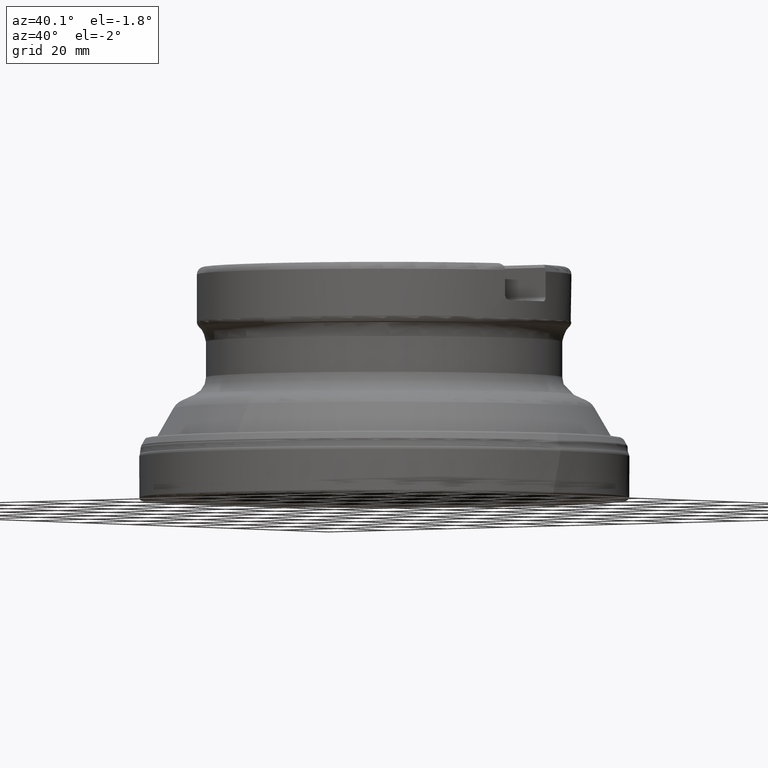
[diagram: clean part render]
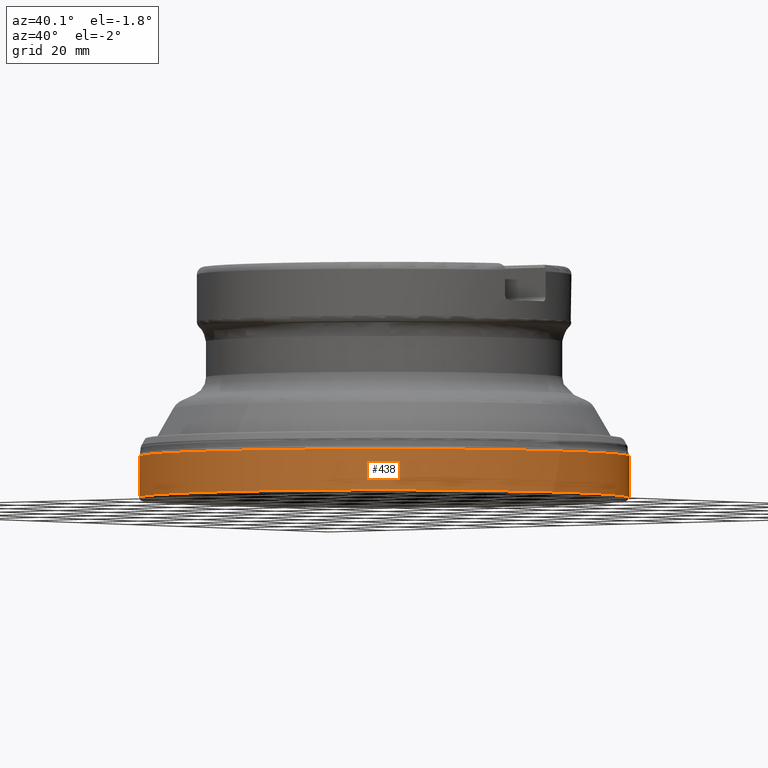
[diagram: same view with one face highlighted and labeled with its STEP entity id]
A machine part, auxiliary view. The second image highlights one B-rep face of the part: STEP entity #438.
In plain terms, the highlighted face is a SurfaceOfRevolution surface.
Its self-contained STEP definition (entity closure, byte-faithful):
#127=SURFACE_OF_REVOLUTION('',#1205,#148);
#148=AXIS1_PLACEMENT('',#2575,#1622);
#358=FACE_BOUND('',#609,.T.);
#359=FACE_BOUND('',#610,.T.);
#438=ADVANCED_FACE('',(#358,#359),#127,.F.);
#609=EDGE_LOOP('',(#851));
#610=EDGE_LOOP('',(#852));
#851=ORIENTED_EDGE('',*,*,#1073,.T.);
#852=ORIENTED_EDGE('',*,*,#1074,.F.);
#952=VERTEX_POINT('',#2546);
#953=VERTEX_POINT('',#2560);
#1073=EDGE_CURVE('',#952,#952,#1138,.T.);
#1074=EDGE_CURVE('',#953,#953,#1139,.T.);
#1138=CIRCLE('',#1328,63.500000056037);
#1139=CIRCLE('',#1329,63.5000004120349);
#1205=B_SPLINE_CURVE_WITH_KNOTS('',3,(#2561,#2562,#2563,#2564,#2565,#2566,
#2567,#2568,#2569,#2570,#2571,#2572,#2573,#2574),.UNSPECIFIED.,.F.,.F.,
(4,1,1,1,1,1,1,1,1,1,1,4),(0.,0.228057409693129,0.368730032744676,0.509402655796224,
0.650075278847772,0.720411590373546,0.755579746136432,0.790747901899319,
0.861084213425093,0.931420524950867,0.966588680713754,1.),.UNSPECIFIED.);
#1328=AXIS2_PLACEMENT_3D('',#2545,#1617,#1618);
#1329=AXIS2_PLACEMENT_3D('',#2559,#1620,#1621);
#1617=DIRECTION('',(0.,1.17145536458252E-15,1.));
#1618=DIRECTION('',(0.,-1.,1.17127982624993E-15));
#1620=DIRECTION('',(0.,1.17145536458252E-15,1.));
#1621=DIRECTION('',(0.,-1.,1.17469462965335E-15));
#1622=DIRECTION('',(0.,1.17145536458252E-15,1.));
#2545=CARTESIAN_POINT('',(0.,8.90037978000637E-16,0.759771140164459));
#2546=CARTESIAN_POINT('',(0.,-63.500000056037,0.759771140164534));
#2559=CARTESIAN_POINT('',(0.,1.33646509864357E-14,11.4085874635083));
#2560=CARTESIAN_POINT('',(0.,-63.5000004120349,11.4085874635083));
#2561=CARTESIAN_POINT('',(63.3570795751105,-4.25798869339839,11.4085882594669));
#2562=CARTESIAN_POINT('',(63.3648211930955,-4.47400918221444,10.6022483479777));
#2563=CARTESIAN_POINT('',(63.3665879115517,-4.82331659150944,9.29844025175909));
#2564=CARTESIAN_POINT('',(63.3453403141247,-5.30596122860873,7.49741432354278));
#2565=CARTESIAN_POINT('',(63.3142559108084,-5.70572784213283,6.00553461371264));
#2566=CARTESIAN_POINT('',(63.2783601523229,-6.03868171375379,4.7625025710211));
#2567=CARTESIAN_POINT('',(63.2483058508332,-6.27211561371164,3.89265032904075));
#2568=CARTESIAN_POINT('',(63.2297282908924,-6.40479888254089,3.39543344172054));
#2569=CARTESIAN_POINT('',(63.210616176704,-6.5261478606373,2.89533697333363));
#2570=CARTESIAN_POINT('',(63.1858272144799,-6.66044970116,2.26618072138163));
#2571=CARTESIAN_POINT('',(63.160347311774,-6.77000046760345,1.63230350778106));
#2572=CARTESIAN_POINT('',(63.1401103117738,-6.84094701958394,1.12916039672635));
#2573=CARTESIAN_POINT('',(63.1298472543305,-6.87588310274188,0.88077889895184));
#2574=CARTESIAN_POINT('',(63.1247811680127,-6.89289558946003,0.759771140164467));
#2575=CARTESIAN_POINT('',(0.,0.,0.));